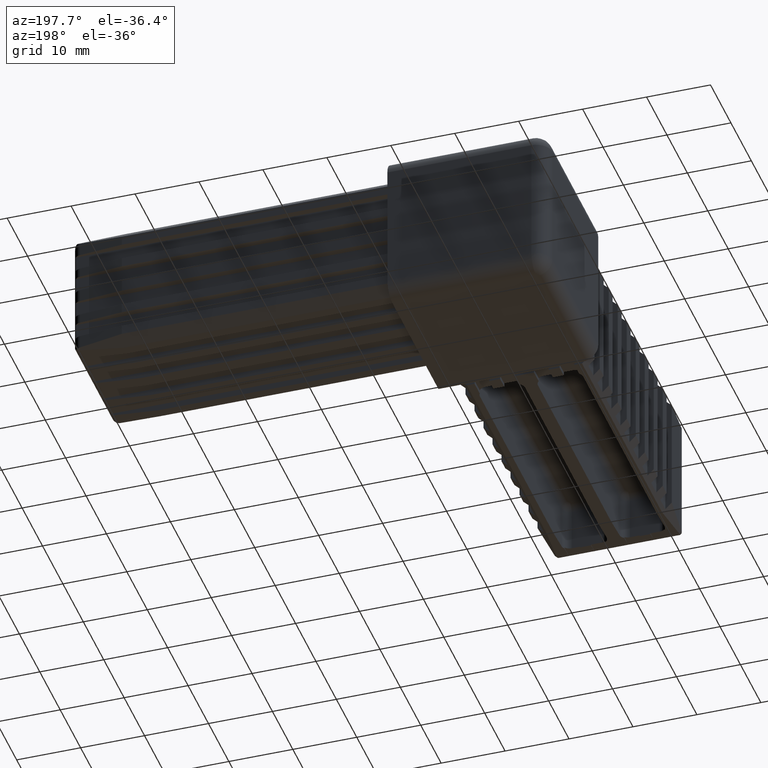
[diagram: clean part render]
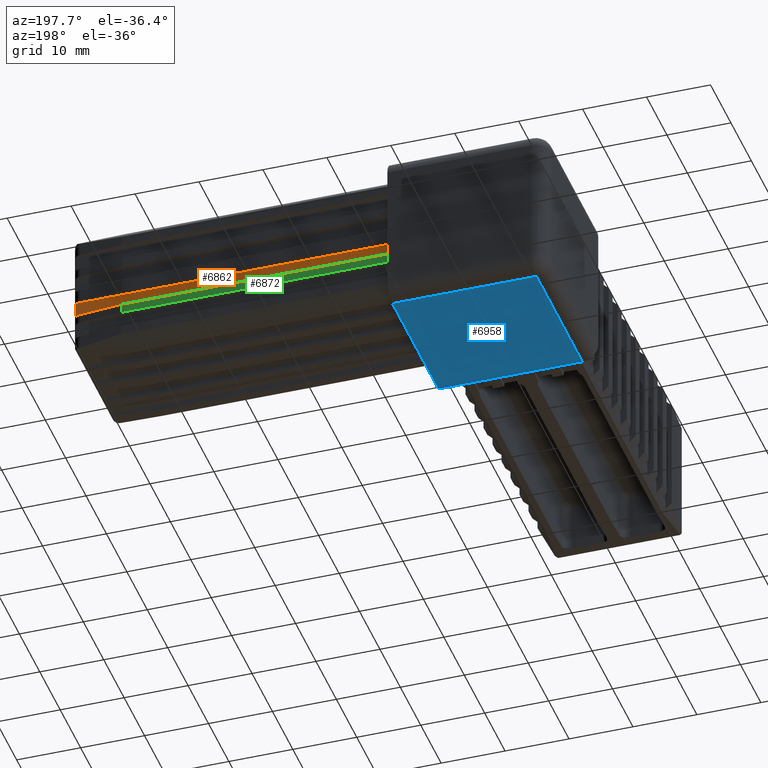
[diagram: same view with three faces highlighted in distinct colors, each labeled with its STEP entity id]
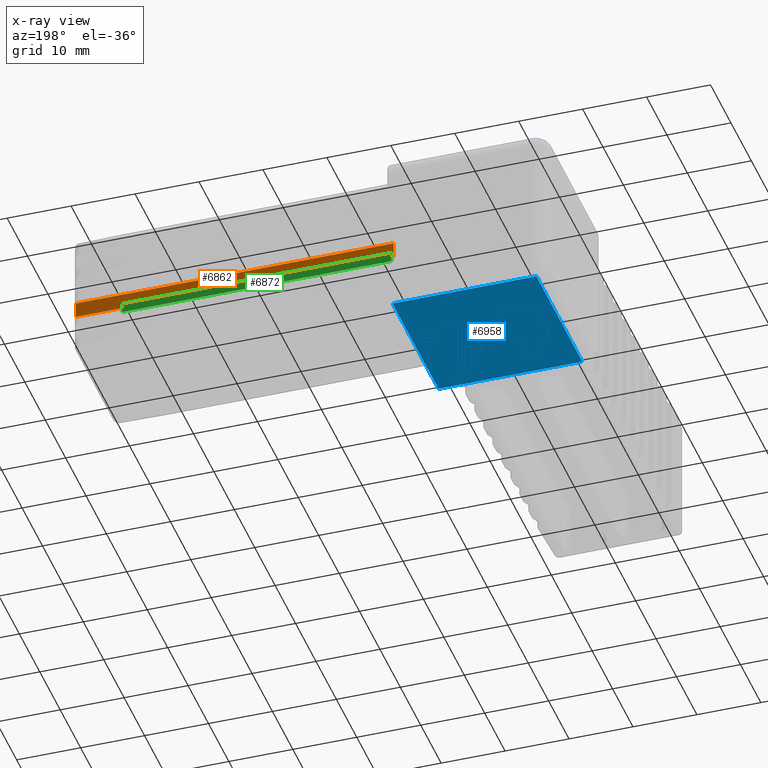
[diagram: x-ray of the same camera — body ghosted, the three highlighted faces saturated]
A machine part, auxiliary view with three faces highlighted in distinct colors.
The next image is the same camera in x-ray (body ghosted, the three faces saturated) — at least one of them is partly hidden behind the body in this view.
Their STEP definitions:

[orange] entity #6862 — the highlighted planar face has unit normal (0, -1, 0).
#287=LINE('',#10028,#1095);
#757=LINE('',#11068,#1565);
#844=LINE('',#11241,#1652);
#845=LINE('',#11242,#1653);
#1095=VECTOR('',#8074,2.497);
#1565=VECTOR('',#8938,49.7052925996183);
#1652=VECTOR('',#9105,49.7052925996183);
#1653=VECTOR('',#9106,2.497);
#1950=PLANE('',#7405);
#2307=FACE_OUTER_BOUND('',#2679,.T.);
#2679=EDGE_LOOP('',(#6075,#6076,#6077,#6078));
#3140=VERTEX_POINT('',#10025);
#3141=VERTEX_POINT('',#10027);
#3514=VERTEX_POINT('',#11067);
#3560=VERTEX_POINT('',#11240);
#3862=EDGE_CURVE('',#3140,#3141,#287,.T.);
#4387=EDGE_CURVE('',#3141,#3514,#757,.T.);
#4474=EDGE_CURVE('',#3140,#3560,#844,.T.);
#4475=EDGE_CURVE('',#3560,#3514,#845,.T.);
#6075=ORIENTED_EDGE('',*,*,#3862,.F.);
#6076=ORIENTED_EDGE('',*,*,#4474,.T.);
#6077=ORIENTED_EDGE('',*,*,#4475,.T.);
#6078=ORIENTED_EDGE('',*,*,#4387,.F.);
#6862=ADVANCED_FACE('',(#2307),#1950,.F.);
#7405=AXIS2_PLACEMENT_3D('',#11239,#9103,#9104);
#8074=DIRECTION('',(0.,0.,1.));
#8938=DIRECTION('',(-1.,-8.88178419700125E-17,0.));
#9103=DIRECTION('center_axis',(8.88178419700125E-17,-1.,0.));
#9104=DIRECTION('ref_axis',(0.,0.,1.));
#9105=DIRECTION('',(-1.,-8.88178419700125E-17,0.));
#9106=DIRECTION('',(0.,0.,1.));
#10025=CARTESIAN_POINT('',(62.2052925996183,9.502,-3.499));
#10027=CARTESIAN_POINT('',(62.2052925996183,9.502,-1.002));
#10028=CARTESIAN_POINT('',(62.2052925996183,9.502,-2.625));
#11067=CARTESIAN_POINT('',(12.5,9.502,-1.002));
#11068=CARTESIAN_POINT('',(62.5,9.502,-1.002));
#11239=CARTESIAN_POINT('Origin',(62.5,9.502,-3.499));
#11240=CARTESIAN_POINT('',(12.5,9.502,-3.499));
#11241=CARTESIAN_POINT('',(62.5,9.502,-3.499));
#11242=CARTESIAN_POINT('',(12.5,9.502,-1.002));

[blue] entity #6958 — the highlighted planar face has unit normal (0, 0, -1).
#937=LINE('',#11455,#1745);
#940=LINE('',#11462,#1748);
#942=LINE('',#11467,#1750);
#945=LINE('',#11472,#1753);
#1745=VECTOR('',#9400,22.5);
#1748=VECTOR('',#9407,22.5);
#1750=VECTOR('',#9413,22.5);
#1753=VECTOR('',#9418,22.5);
#2039=PLANE('',#7511);
#2403=FACE_OUTER_BOUND('',#2776,.T.);
#2776=EDGE_LOOP('',(#6504,#6505,#6506,#6507));
#3570=VERTEX_POINT('',#11424);
#3580=VERTEX_POINT('',#11453);
#3581=VERTEX_POINT('',#11458);
#3583=VERTEX_POINT('',#11466);
#4576=EDGE_CURVE('',#3580,#3570,#937,.T.);
#4580=EDGE_CURVE('',#3570,#3581,#940,.T.);
#4582=EDGE_CURVE('',#3583,#3581,#942,.T.);
#4585=EDGE_CURVE('',#3580,#3583,#945,.T.);
#6504=ORIENTED_EDGE('',*,*,#4580,.F.);
#6505=ORIENTED_EDGE('',*,*,#4576,.F.);
#6506=ORIENTED_EDGE('',*,*,#4585,.T.);
#6507=ORIENTED_EDGE('',*,*,#4582,.T.);
#6958=ADVANCED_FACE('',(#2403),#2039,.T.);
#7511=AXIS2_PLACEMENT_3D('',#11471,#9416,#9417);
#9400=DIRECTION('',(-1.,0.,0.));
#9407=DIRECTION('',(2.66453525910038E-16,-1.,0.));
#9413=DIRECTION('',(-1.,1.77635683940025E-16,0.));
#9416=DIRECTION('center_axis',(0.,0.,-1.));
#9417=DIRECTION('ref_axis',(-1.,0.,0.));
#9418=DIRECTION('',(8.88178419700125E-17,-1.,0.));
#11424=CARTESIAN_POINT('',(-10.,10.,-12.5));
#11453=CARTESIAN_POINT('',(12.5,10.,-12.5));
#11455=CARTESIAN_POINT('',(6.25,10.,-12.5));
#11458=CARTESIAN_POINT('',(-10.,-12.5,-12.5));
#11462=CARTESIAN_POINT('',(-10.,6.25,-12.5));
#11466=CARTESIAN_POINT('',(12.5,-12.5,-12.5));
#11467=CARTESIAN_POINT('',(12.5,-12.5,-12.5));
#11471=CARTESIAN_POINT('Origin',(0.,4.44089209850063E-15,-12.5));
#11472=CARTESIAN_POINT('',(12.5,12.5,-12.5));

[green] entity #6872 — the highlighted planar face has unit normal (-0, 1, 0).
#750=LINE('',#11054,#1558);
#753=LINE('',#11059,#1561);
#846=LINE('',#11245,#1654);
#860=LINE('',#11272,#1668);
#1558=VECTOR('',#8925,1.503);
#1561=VECTOR('',#8930,42.158);
#1654=VECTOR('',#9109,42.158);
#1668=VECTOR('',#9141,1.503);
#1960=PLANE('',#7415);
#2317=FACE_OUTER_BOUND('',#2689,.T.);
#2689=EDGE_LOOP('',(#6118,#6119,#6120,#6121));
#3509=VERTEX_POINT('',#11051);
#3510=VERTEX_POINT('',#11053);
#3511=VERTEX_POINT('',#11057);
#3561=VERTEX_POINT('',#11244);
#4380=EDGE_CURVE('',#3509,#3510,#750,.T.);
#4383=EDGE_CURVE('',#3509,#3511,#753,.T.);
#4476=EDGE_CURVE('',#3561,#3510,#846,.T.);
#4490=EDGE_CURVE('',#3561,#3511,#860,.T.);
#6118=ORIENTED_EDGE('',*,*,#4380,.F.);
#6119=ORIENTED_EDGE('',*,*,#4383,.T.);
#6120=ORIENTED_EDGE('',*,*,#4490,.F.);
#6121=ORIENTED_EDGE('',*,*,#4476,.T.);
#6872=ADVANCED_FACE('',(#2317),#1960,.T.);
#7415=AXIS2_PLACEMENT_3D('',#11271,#9139,#9140);
#8925=DIRECTION('',(0.,0.,1.));
#8930=DIRECTION('',(-1.,-8.88178419700125E-17,0.));
#9109=DIRECTION('',(1.,8.88178419700125E-17,0.));
#9139=DIRECTION('center_axis',(-8.88178419700125E-17,1.,0.));
#9140=DIRECTION('ref_axis',(0.,0.,1.));
#9141=DIRECTION('',(0.,0.,-1.));
#11051=CARTESIAN_POINT('',(54.658,10.5,-5.002));
#11053=CARTESIAN_POINT('',(54.658,10.5,-3.499));
#11054=CARTESIAN_POINT('',(54.658,10.5,-5.25));
#11057=CARTESIAN_POINT('',(12.5,10.5,-5.002));
#11059=CARTESIAN_POINT('',(37.5,10.5,-5.002));
#11244=CARTESIAN_POINT('',(12.5,10.5,-3.499));
#11245=CARTESIAN_POINT('',(37.5,10.5,-3.499));
#11271=CARTESIAN_POINT('Origin',(12.5,10.5,-10.5));
#11272=CARTESIAN_POINT('',(12.5,10.5,-5.25));